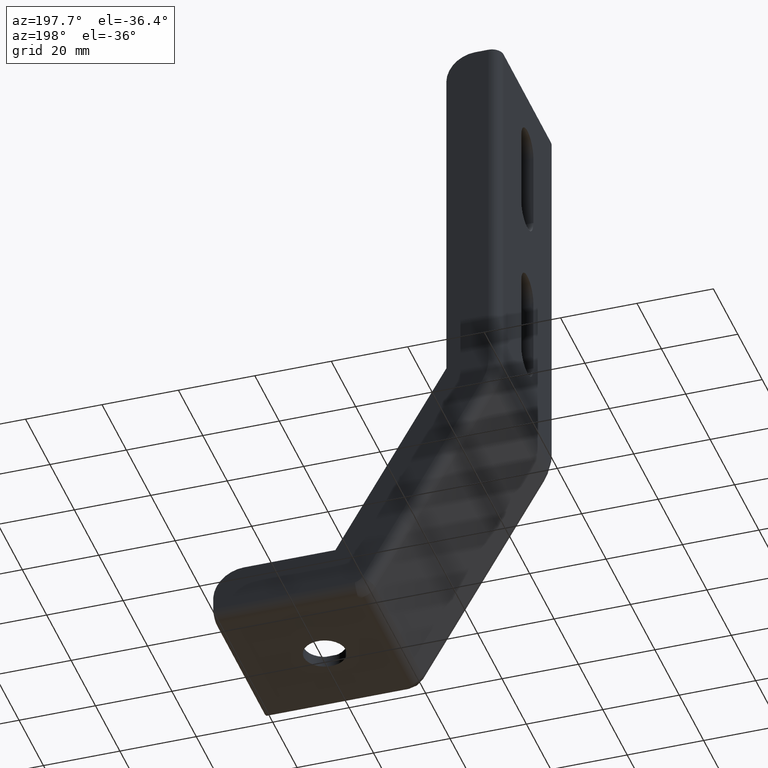
[diagram: clean part render]
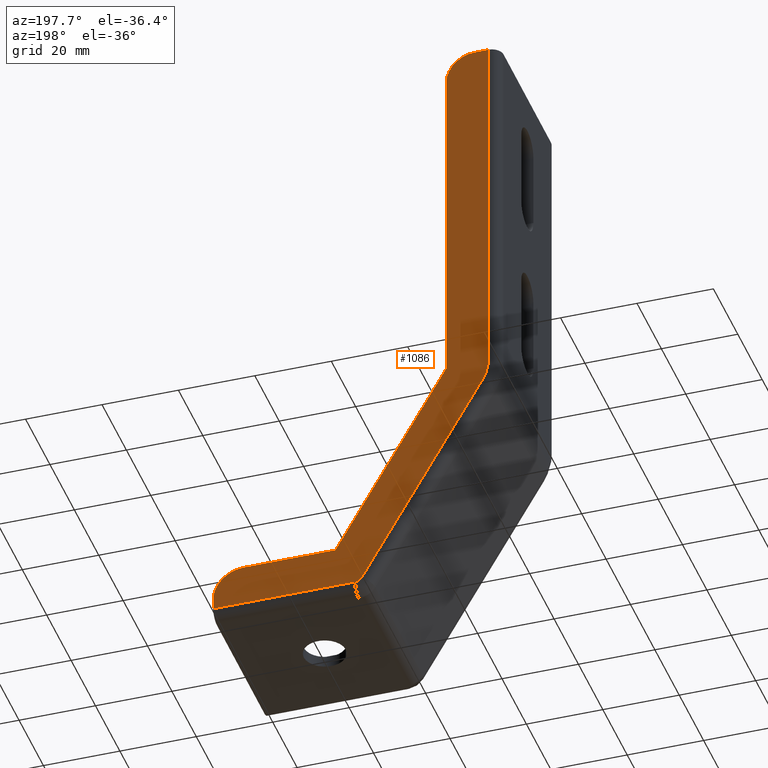
[diagram: same view with one face highlighted and labeled with its STEP entity id]
A machine part, auxiliary view. The second image highlights one B-rep face of the part: STEP entity #1086.
In plain terms, the highlighted planar face has unit normal (0, 1, 0).
Its self-contained STEP definition (entity closure, byte-faithful):
#175=CARTESIAN_POINT('',(-46.499906998479219,22.500002482406909,159.999679998782090));
#176=VERTEX_POINT('',#175);
#194=CARTESIAN_POINT('',(-38.999921999843991,22.500002482406909,152.499695000146860));
#195=VERTEX_POINT('',#194);
#202=CARTESIAN_POINT('',(-46.499906998479219,22.500002482406909,152.499695000146860));
#203=DIRECTION('',(0.0,1.0,-6.123234E-017));
#204=DIRECTION('',(-1.0,0.0,0.0));
#205=AXIS2_PLACEMENT_3D('',#202,#203,#204);
#206=CIRCLE('',#205,7.499984998635052);
#207=EDGE_CURVE('',#176,#195,#206,.T.);
#226=CARTESIAN_POINT('',(-38.999921999843991,22.500002482406902,63.784760429968628));
#227=VERTEX_POINT('',#226);
#234=CARTESIAN_POINT('',(-38.999921999843991,22.500002482406909,152.499695000146860));
#235=DIRECTION('',(0.0,0.0,-1.0));
#236=VECTOR('',#235,88.714934570178229);
#237=LINE('',#234,#236);
#238=EDGE_CURVE('',#195,#227,#237,.T.);
#257=CARTESIAN_POINT('',(-9.958795082330198,22.500002482406899,13.999971999944135));
#258=VERTEX_POINT('',#257);
#265=CARTESIAN_POINT('',(-38.999921999843991,22.500002482406902,63.784760429968628));
#266=DIRECTION('',(0.503871029839170,-6.164050E-017,-0.863778898381301));
#267=VECTOR('',#266,57.636032233850422);
#268=LINE('',#265,#267);
#269=EDGE_CURVE('',#227,#258,#268,.T.);
#288=CARTESIAN_POINT('',(13.999955999912345,22.500002482406899,13.999971999944135));
#289=VERTEX_POINT('',#288);
#296=CARTESIAN_POINT('',(-9.958795082330198,22.500002482406899,13.999971999944135));
#297=DIRECTION('',(1.0,0.0,0.0));
#298=VECTOR('',#297,23.958751082242543);
#299=LINE('',#296,#298);
#300=EDGE_CURVE('',#258,#289,#299,.T.);
#320=CARTESIAN_POINT('',(21.999955999912345,22.500002482406899,6.499986999977407));
#321=VERTEX_POINT('',#320);
#328=CARTESIAN_POINT('',(13.999955999912345,22.500002482406899,5.983304299924383));
#329=DIRECTION('',(0.0,1.0,-6.123234E-017));
#330=DIRECTION('',(0.0,6.123234E-017,1.0));
#331=AXIS2_PLACEMENT_3D('',#328,#329,#330);
#332=CIRCLE('',#331,8.016667700019355);
#333=EDGE_CURVE('',#289,#321,#332,.T.);
#611=CARTESIAN_POINT('',(-49.999894000779022,22.500002482406902,64.033926730096027));
#612=VERTEX_POINT('',#611);
#626=CARTESIAN_POINT('',(-48.454959244155361,22.500002482406902,58.165156876088076));
#627=VERTEX_POINT('',#626);
#628=CARTESIAN_POINT('',(-38.723337911614188,22.500002482406909,63.864709315151238));
#629=DIRECTION('',(0.0,1.000000000000000,-6.123234E-017));
#630=DIRECTION('',(-0.863789645875683,-3.085207E-017,-0.503852605111816));
#631=AXIS2_PLACEMENT_3D('',#628,#629,#630);
#632=CIRCLE('',#631,11.277825666572486);
#633=EDGE_CURVE('',#627,#612,#632,.T.);
#664=CARTESIAN_POINT('',(-49.999894000779022,22.500002482406909,159.999679998782090));
#665=VERTEX_POINT('',#664);
#673=CARTESIAN_POINT('',(-49.999894000779022,22.500002482406902,64.033926730096027));
#674=DIRECTION('',(0.0,0.0,1.0));
#675=VECTOR('',#674,95.965753268686058);
#676=LINE('',#673,#675);
#677=EDGE_CURVE('',#612,#665,#676,.T.);
#734=CARTESIAN_POINT('',(-48.365253774518351,22.500002482406902,58.008686050206961));
#735=VERTEX_POINT('',#734);
#736=CARTESIAN_POINT('',(-37.999906999814364,22.500002482406909,64.055138418342736));
#737=DIRECTION('',(3.081488E-033,1.000000000000000,-6.123234E-017));
#738=DIRECTION('',(-0.863778897891984,-3.085320E-017,-0.503871030677999));
#739=AXIS2_PLACEMENT_3D('',#736,#737,#738);
#740=CIRCLE('',#739,12.000000000000002);
#741=EDGE_CURVE('',#735,#627,#740,.T.);
#809=CARTESIAN_POINT('',(-15.128112481684184,22.500002482406899,2.999999999999999));
#810=VERTEX_POINT('',#809);
#811=CARTESIAN_POINT('',(21.999955999912345,22.500002482406899,2.999999999999999));
#812=VERTEX_POINT('',#811);
#813=CARTESIAN_POINT('',(-15.128112481684184,22.500002482406899,2.999999999999999));
#814=DIRECTION('',(1.0,0.0,0.0));
#815=VECTOR('',#814,37.128068481596529);
#816=LINE('',#813,#815);
#817=EDGE_CURVE('',#810,#812,#816,.T.);
#1043=CARTESIAN_POINT('',(22.000446086938609,22.500002482406909,160.000170085808350));
#1044=DIRECTION('',(0.0,1.0,0.0));
#1045=DIRECTION('',(0.0,0.0,-1.0));
#1046=AXIS2_PLACEMENT_3D('',#1043,#1044,#1045);
#1047=PLANE('',#1046);
#1048=ORIENTED_EDGE('',*,*,#207,.T.);
#1049=ORIENTED_EDGE('',*,*,#238,.T.);
#1050=ORIENTED_EDGE('',*,*,#269,.T.);
#1051=ORIENTED_EDGE('',*,*,#300,.T.);
#1052=ORIENTED_EDGE('',*,*,#333,.T.);
#1053=CARTESIAN_POINT('',(21.999955999912345,22.500002482406899,6.499986999977407));
#1054=DIRECTION('',(0.0,0.0,-1.0));
#1055=VECTOR('',#1054,3.499986999977409);
#1056=LINE('',#1053,#1055);
#1057=EDGE_CURVE('',#321,#812,#1056,.T.);
#1058=ORIENTED_EDGE('',*,*,#1057,.T.);
#1059=ORIENTED_EDGE('',*,*,#817,.F.);
#1060=CARTESIAN_POINT('',(-16.855721321080182,22.500002482406899,3.992345441978613));
#1061=VERTEX_POINT('',#1060);
#1062=CARTESIAN_POINT('',(-15.128112481684184,22.500002482406899,4.999999999999997));
#1063=DIRECTION('',(0.0,-1.0,6.123234E-017));
#1064=DIRECTION('',(-0.863778897892045,-3.085320E-017,-0.503871030677896));
#1065=AXIS2_PLACEMENT_3D('',#1062,#1063,#1064);
#1066=CIRCLE('',#1065,1.999999999999783);
#1067=EDGE_CURVE('',#1061,#810,#1066,.T.);
#1068=ORIENTED_EDGE('',*,*,#1067,.F.);
#1069=CARTESIAN_POINT('',(-48.365253774517896,22.500002482406902,58.008686050206961));
#1070=DIRECTION('',(0.503871030678003,-5.681168E-017,-0.863778897891982));
#1071=VECTOR('',#1070,62.534915752229033);
#1072=LINE('',#1069,#1071);
#1073=EDGE_CURVE('',#735,#1061,#1072,.T.);
#1074=ORIENTED_EDGE('',*,*,#1073,.F.);
#1075=ORIENTED_EDGE('',*,*,#741,.T.);
#1076=ORIENTED_EDGE('',*,*,#633,.T.);
#1077=ORIENTED_EDGE('',*,*,#677,.T.);
#1078=CARTESIAN_POINT('',(-46.499906998479219,22.500002482406909,159.999679998782090));
#1079=DIRECTION('',(-1.0,0.0,0.0));
#1080=VECTOR('',#1079,3.499987002299804);
#1081=LINE('',#1078,#1080);
#1082=EDGE_CURVE('',#176,#665,#1081,.T.);
#1083=ORIENTED_EDGE('',*,*,#1082,.F.);
#1084=EDGE_LOOP('',(#1048,#1049,#1050,#1051,#1052,#1058,#1059,#1068,#1074,#1075,#1076,#1077,#1083));
#1085=FACE_OUTER_BOUND('',#1084,.T.);
#1086=ADVANCED_FACE('',(#1085),#1047,.T.);